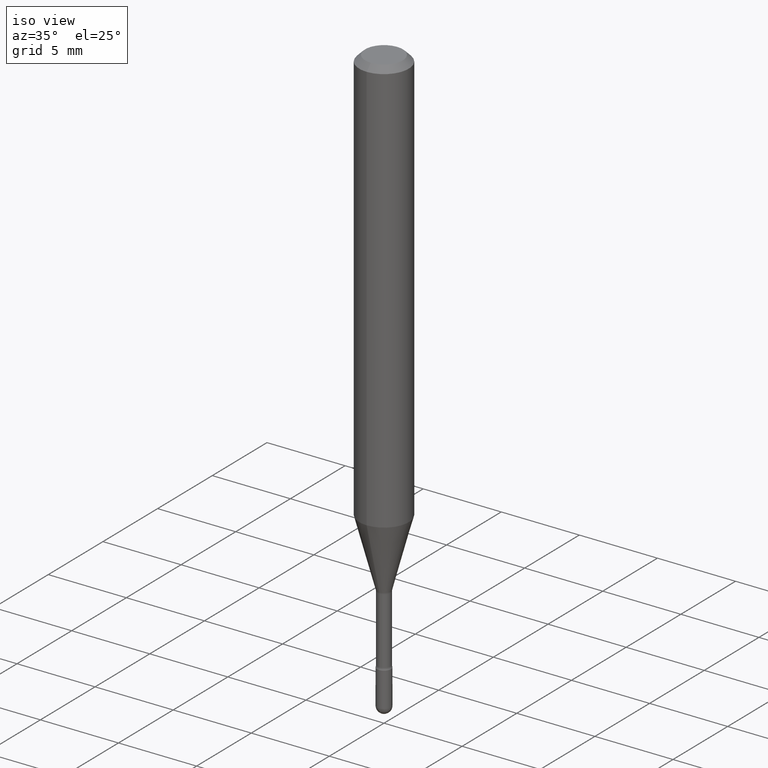
[diagram: clean part render]
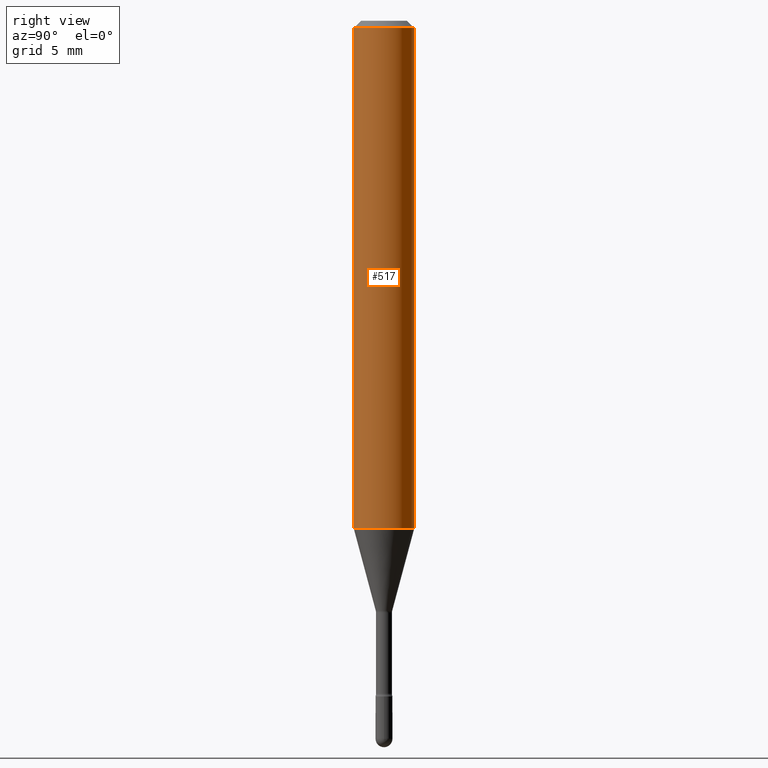
[diagram: tour spotlight — one face highlighted and labeled with its STEP entity id]
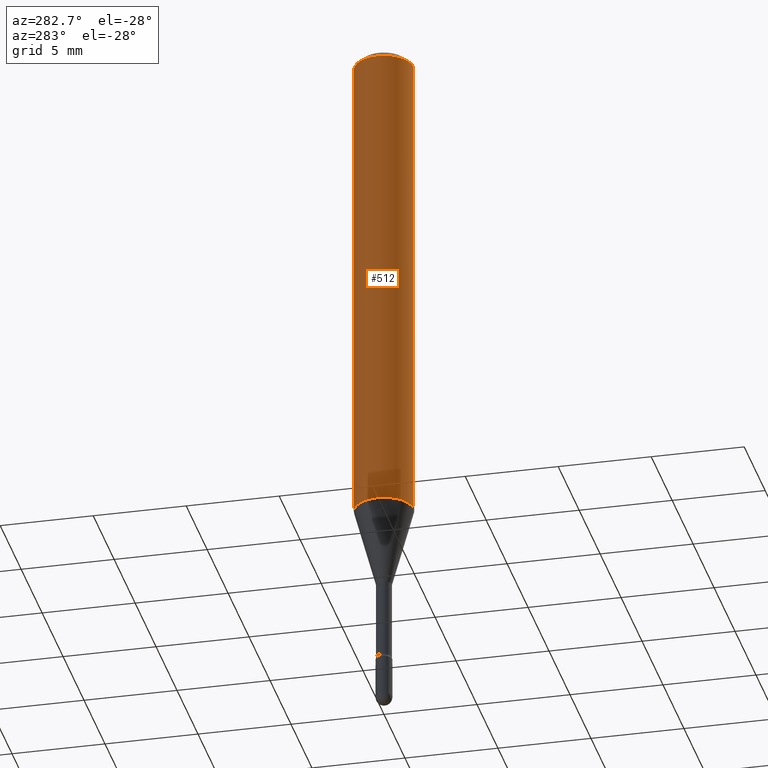
[diagram: tour spotlight — one face highlighted and labeled with its STEP entity id]
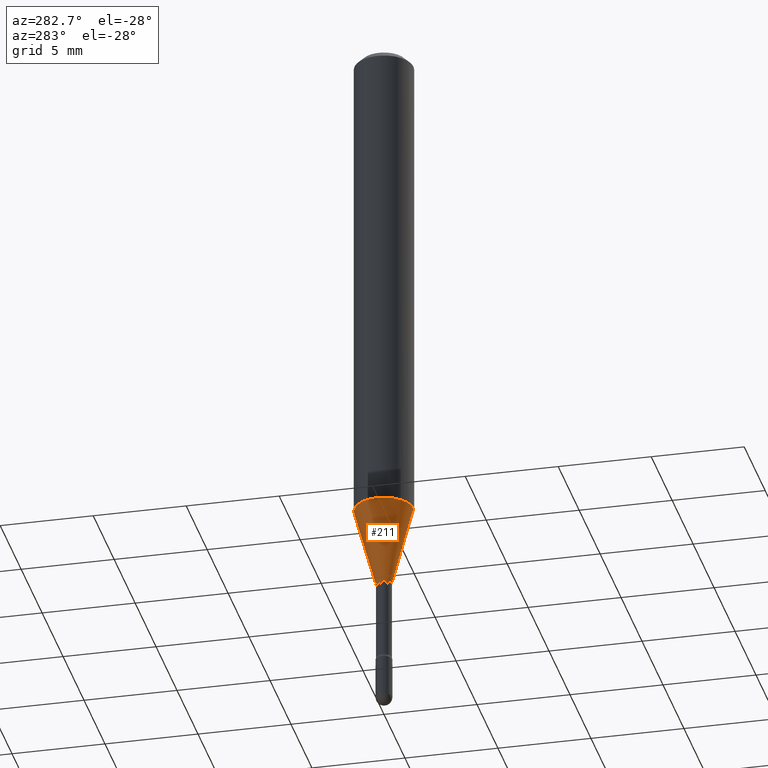
[diagram: tour spotlight — one face highlighted and labeled with its STEP entity id]
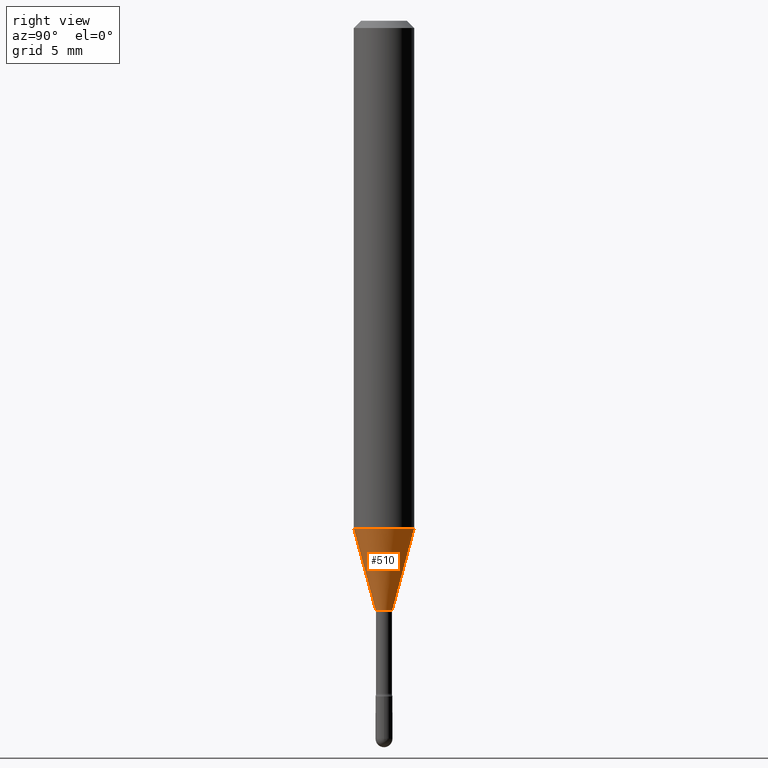
[diagram: tour spotlight — one face highlighted and labeled with its STEP entity id]
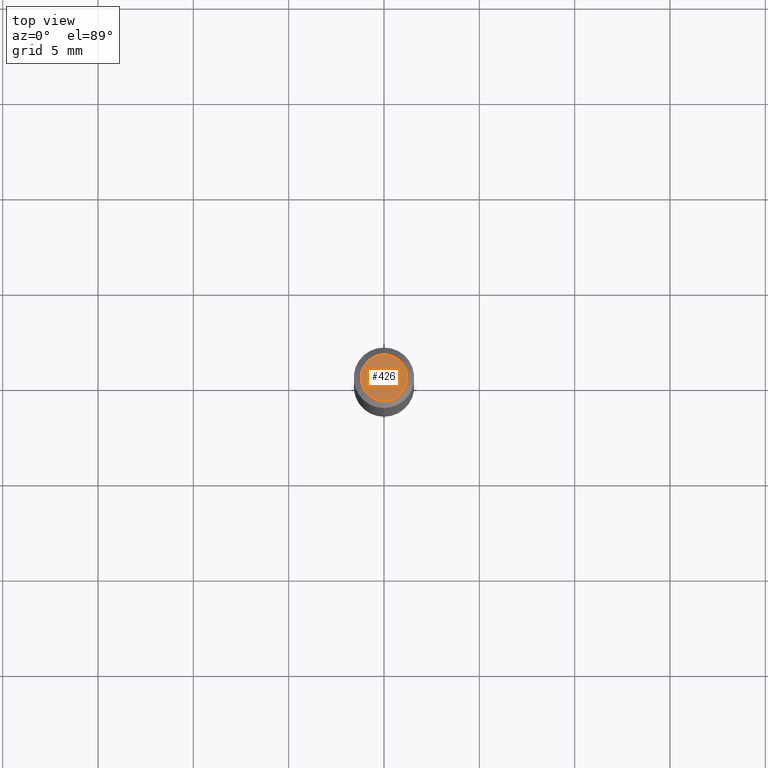
[diagram: tour spotlight — one face highlighted and labeled with its STEP entity id]
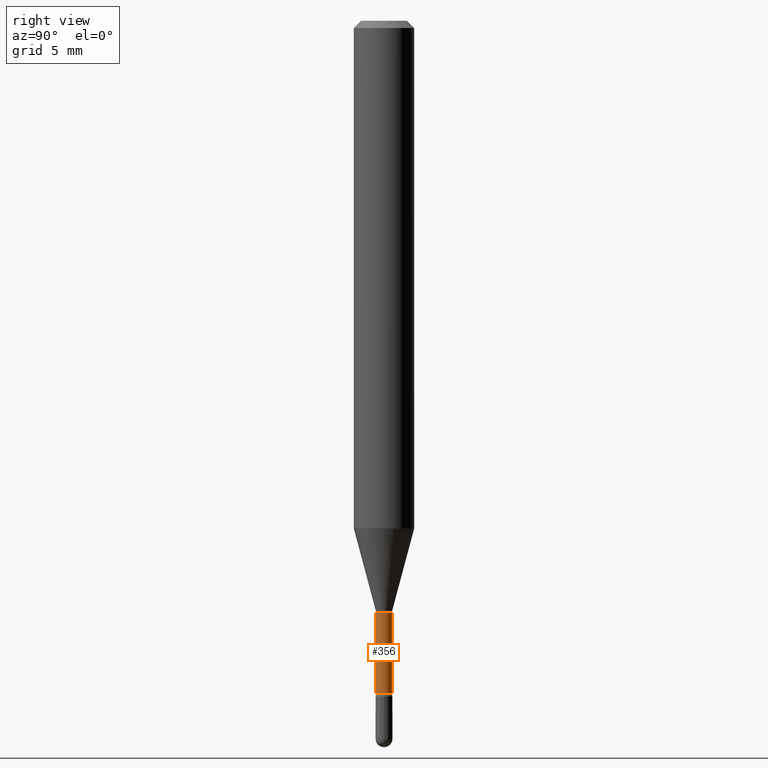
[diagram: tour spotlight — one face highlighted and labeled with its STEP entity id]
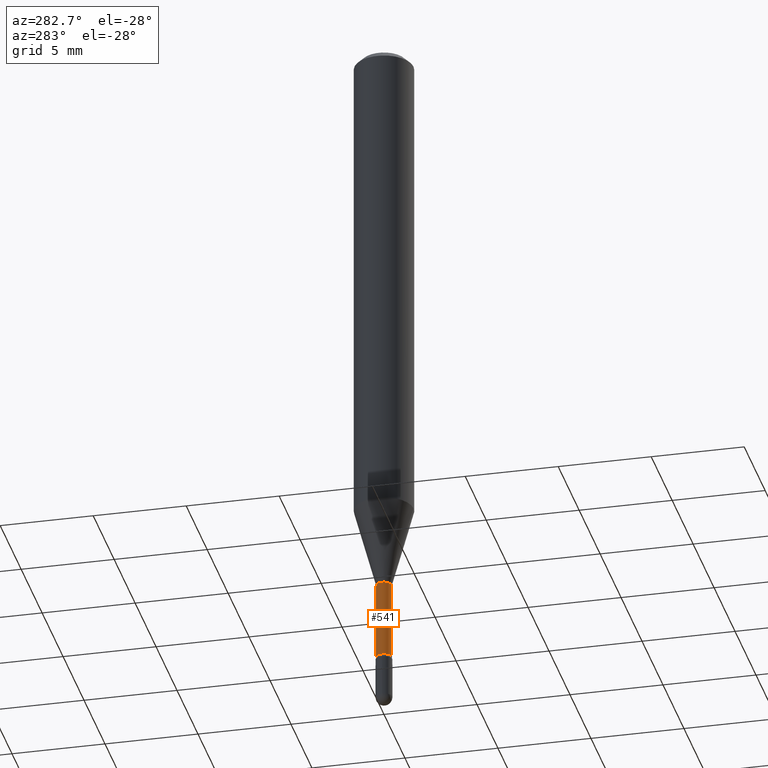
[diagram: tour spotlight — one face highlighted and labeled with its STEP entity id]
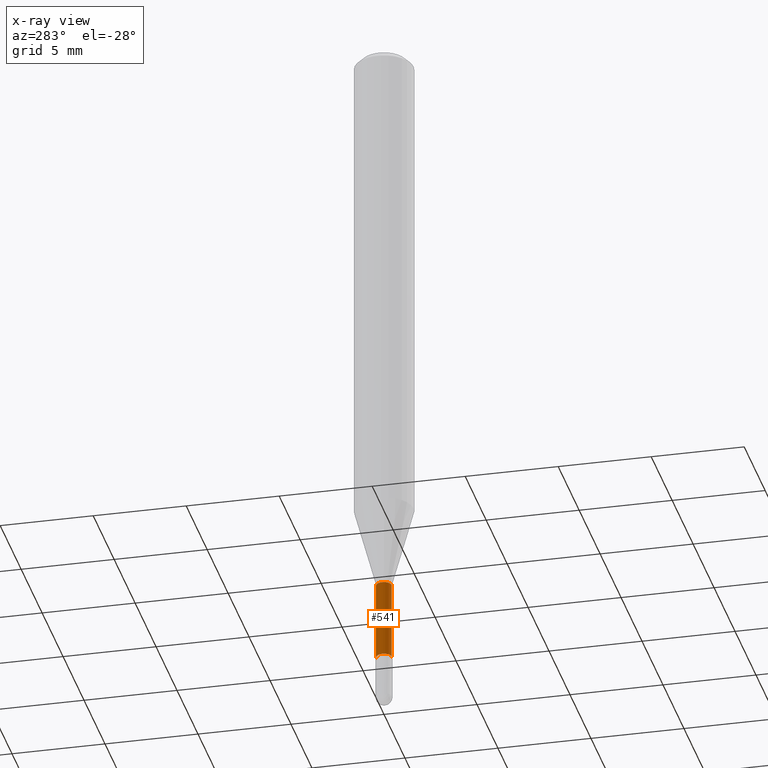
[diagram: x-ray of the same camera — body ghosted, this tour face saturated]
A machine part: a face-by-face anatomy tour. The part has 19 B-rep faces; the first image is the clean iso view, then the 7 largest visible faces are spotlighted one at a time (largest first), each with its STEP entity span.

Face 1 — right view, entity #517. In plain terms, the highlighted cylindrical surface (edge-blend (fillet) strip) has radius 1.5875 mm, axis along (-0, 0, 1).
Definition (entity closure, byte-faithful):
#6 = DIRECTION ( 'NONE',  ( -6.982962677686265922E-15, -1.000000000000000000, 3.491500473345853689E-15 ) ) ;
#11 = CARTESIAN_POINT ( 'NONE',  ( 2.563177371771484502E-29, -3.659578025209718433E-15, -1.048139060311453319 ) ) ;
#39 = LINE ( 'NONE', #515, #350 ) ;
#54 = EDGE_CURVE ( 'NONE', #156, #499, #299, .T. ) ;
#56 = FACE_OUTER_BOUND ( 'NONE', #346, .T. ) ;
#67 = ORIENTED_EDGE ( 'NONE', *, *, #308, .F. ) ;
#72 = CARTESIAN_POINT ( 'NONE',  ( 4.440892098500880569E-16, 0.06249999999999632933, -1.048139060311453763 ) ) ;
#89 = DIRECTION ( 'NONE',  ( -2.445455444633309637E-29, 3.491500473345854084E-15, 1.000000000000000000 ) ) ;
#138 = CARTESIAN_POINT ( 'NONE',  ( -1.169113584055446105E-44, 1.669184350826100908E-30, 4.780733988912460139E-16 ) ) ;
#155 = CARTESIAN_POINT ( 'NONE',  ( -4.364351673553912750E-16, -0.06250000000000005551, -0.01499999999999986587 ) ) ;
#156 = VERTEX_POINT ( 'NONE', #72 ) ;
#178 = CYLINDRICAL_SURFACE ( 'NONE', #262, 0.06250000000000000000 ) ;
#182 = VERTEX_POINT ( 'NONE', #155 ) ;
#185 = DIRECTION ( 'NONE',  ( -2.445455444633309637E-29, 3.491500473345854084E-15, 1.000000000000000000 ) ) ;
#187 = ORIENTED_EDGE ( 'NONE', *, *, #54, .T. ) ;
#188 = DIRECTION ( 'NONE',  ( -2.445455444633309637E-29, 3.491500473345854084E-15, 1.000000000000000000 ) ) ;
#249 = DIRECTION ( 'NONE',  ( -2.445455444633309637E-29, 3.491500473345854084E-15, 1.000000000000000000 ) ) ;
#262 = AXIS2_PLACEMENT_3D ( 'NONE', #138, #185, #6 ) ;
#273 = CIRCLE ( 'NONE', #309, 0.06250000000000000000 ) ;
#282 = AXIS2_PLACEMENT_3D ( 'NONE', #11, #188, #358 ) ;
#287 = EDGE_CURVE ( 'NONE', #306, #156, #522, .T. ) ;
#299 = LINE ( 'NONE', #507, #476 ) ;
#306 = VERTEX_POINT ( 'NONE', #319 ) ;
#308 = EDGE_CURVE ( 'NONE', #306, #182, #39, .T. ) ;
#309 = AXIS2_PLACEMENT_3D ( 'NONE', #345, #563, #427 ) ;
#319 = CARTESIAN_POINT ( 'NONE',  ( -4.364351673553661300E-16, -0.06250000000000367761, -1.048139060311453097 ) ) ;
#345 = CARTESIAN_POINT ( 'NONE',  ( 3.668183166949984529E-31, -5.237250710018810412E-17, -0.01500000000000008271 ) ) ;
#346 = EDGE_LOOP ( 'NONE', ( #403, #187, #417, #67 ) ) ;
#350 = VECTOR ( 'NONE', #89, 39.37007874015748143 ) ;
#358 = DIRECTION ( 'NONE',  ( -6.982962677686265922E-15, -1.000000000000000000, 4.370956789862821150E-15 ) ) ;
#403 = ORIENTED_EDGE ( 'NONE', *, *, #287, .T. ) ;
#417 = ORIENTED_EDGE ( 'NONE', *, *, #472, .F. ) ;
#427 = DIRECTION ( 'NONE',  ( -6.982962677686265922E-15, -1.000000000000000000, 3.483106191921935554E-15 ) ) ;
#472 = EDGE_CURVE ( 'NONE', #182, #499, #273, .T. ) ;
#476 = VECTOR ( 'NONE', #249, 39.37007874015748143 ) ;
#499 = VERTEX_POINT ( 'NONE', #511 ) ;
#507 = CARTESIAN_POINT ( 'NONE',  ( 4.440892098500625669E-16, 0.06250000000000000000, 2.598546193071301830E-16 ) ) ;
#511 = CARTESIAN_POINT ( 'NONE',  ( 4.440892098500883528E-16, 0.06249999999999993755, -0.01500000000000030129 ) ) ;
#515 = CARTESIAN_POINT ( 'NONE',  ( -4.364351673553916201E-16, -0.06250000000000000000, 6.962921784753619435E-16 ) ) ;
#517 = ADVANCED_FACE ( 'NONE', ( #56 ), #178, .T. ) ;
#522 = CIRCLE ( 'NONE', #282, 0.06250000000000000000 ) ;
#563 = DIRECTION ( 'NONE',  ( -2.445455444633309637E-29, 3.491500473345854084E-15, 1.000000000000000000 ) ) ;

Face 2 — auxiliary view, entity #512. In plain terms, the highlighted cylindrical surface (edge-blend (fillet) strip) has radius 1.5875 mm, axis along (-0, 0, 1).
Definition (entity closure, byte-faithful):
#35 = CARTESIAN_POINT ( 'NONE',  ( 3.668183166949984529E-31, -5.237250710018810412E-17, -0.01500000000000008271 ) ) ;
#39 = LINE ( 'NONE', #515, #350 ) ;
#46 = CYLINDRICAL_SURFACE ( 'NONE', #227, 0.06250000000000000000 ) ;
#54 = EDGE_CURVE ( 'NONE', #156, #499, #299, .T. ) ;
#68 = EDGE_CURVE ( 'NONE', #156, #306, #359, .T. ) ;
#70 = EDGE_CURVE ( 'NONE', #499, #182, #213, .T. ) ;
#72 = CARTESIAN_POINT ( 'NONE',  ( 4.440892098500880569E-16, 0.06249999999999632933, -1.048139060311453763 ) ) ;
#89 = DIRECTION ( 'NONE',  ( -2.445455444633309637E-29, 3.491500473345854084E-15, 1.000000000000000000 ) ) ;
#93 = AXIS2_PLACEMENT_3D ( 'NONE', #421, #215, #428 ) ;
#140 = DIRECTION ( 'NONE',  ( -6.982962677686265922E-15, -1.000000000000000000, 3.491500473345853689E-15 ) ) ;
#155 = CARTESIAN_POINT ( 'NONE',  ( -4.364351673553912750E-16, -0.06250000000000005551, -0.01499999999999986587 ) ) ;
#156 = VERTEX_POINT ( 'NONE', #72 ) ;
#182 = VERTEX_POINT ( 'NONE', #155 ) ;
#213 = CIRCLE ( 'NONE', #445, 0.06250000000000000000 ) ;
#215 = DIRECTION ( 'NONE',  ( -2.445455444633309637E-29, 3.491500473345854084E-15, 1.000000000000000000 ) ) ;
#220 = EDGE_LOOP ( 'NONE', ( #394, #231, #448, #478 ) ) ;
#225 = DIRECTION ( 'NONE',  ( -2.445455444633309637E-29, 3.491500473345854084E-15, 1.000000000000000000 ) ) ;
#227 = AXIS2_PLACEMENT_3D ( 'NONE', #442, #225, #140 ) ;
#231 = ORIENTED_EDGE ( 'NONE', *, *, #68, .T. ) ;
#249 = DIRECTION ( 'NONE',  ( -2.445455444633309637E-29, 3.491500473345854084E-15, 1.000000000000000000 ) ) ;
#299 = LINE ( 'NONE', #507, #476 ) ;
#306 = VERTEX_POINT ( 'NONE', #319 ) ;
#308 = EDGE_CURVE ( 'NONE', #306, #182, #39, .T. ) ;
#319 = CARTESIAN_POINT ( 'NONE',  ( -4.364351673553661300E-16, -0.06250000000000367761, -1.048139060311453097 ) ) ;
#344 = FACE_OUTER_BOUND ( 'NONE', #220, .T. ) ;
#350 = VECTOR ( 'NONE', #89, 39.37007874015748143 ) ;
#359 = CIRCLE ( 'NONE', #93, 0.06250000000000000000 ) ;
#378 = DIRECTION ( 'NONE',  ( -6.982962677686265922E-15, -1.000000000000000000, 3.483106191921935554E-15 ) ) ;
#394 = ORIENTED_EDGE ( 'NONE', *, *, #54, .F. ) ;
#421 = CARTESIAN_POINT ( 'NONE',  ( 2.563177371771484502E-29, -3.659578025209718433E-15, -1.048139060311453319 ) ) ;
#428 = DIRECTION ( 'NONE',  ( -6.982962677686265922E-15, -1.000000000000000000, 4.370956789862821150E-15 ) ) ;
#442 = CARTESIAN_POINT ( 'NONE',  ( -1.169113584055446105E-44, 1.669184350826100908E-30, 4.780733988912460139E-16 ) ) ;
#445 = AXIS2_PLACEMENT_3D ( 'NONE', #35, #465, #378 ) ;
#448 = ORIENTED_EDGE ( 'NONE', *, *, #308, .T. ) ;
#465 = DIRECTION ( 'NONE',  ( -2.445455444633309637E-29, 3.491500473345854084E-15, 1.000000000000000000 ) ) ;
#476 = VECTOR ( 'NONE', #249, 39.37007874015748143 ) ;
#478 = ORIENTED_EDGE ( 'NONE', *, *, #70, .F. ) ;
#499 = VERTEX_POINT ( 'NONE', #511 ) ;
#507 = CARTESIAN_POINT ( 'NONE',  ( 4.440892098500625669E-16, 0.06250000000000000000, 2.598546193071301830E-16 ) ) ;
#511 = CARTESIAN_POINT ( 'NONE',  ( 4.440892098500883528E-16, 0.06249999999999993755, -0.01500000000000030129 ) ) ;
#512 = ADVANCED_FACE ( 'NONE', ( #344 ), #46, .T. ) ;
#515 = CARTESIAN_POINT ( 'NONE',  ( -4.364351673553916201E-16, -0.06250000000000000000, 6.962921784753619435E-16 ) ) ;

Face 3 — auxiliary view, entity #211. In plain terms, the highlighted conical surface has half-angle 15 deg.
Definition (entity closure, byte-faithful):
#23 = DIRECTION ( 'NONE',  ( 1.839019923739595977E-15, 0.2588190451025243477, 0.9659258262890673130 ) ) ;
#31 = DIRECTION ( 'NONE',  ( -1.807323732225325801E-15, -0.2588190451025175753, 0.9659258262890690894 ) ) ;
#37 = CARTESIAN_POINT ( 'NONE',  ( 2.823025816868771357E-16, 0.01696111260565972764, -1.218092501787273241 ) ) ;
#38 = EDGE_CURVE ( 'NONE', #455, #156, #281, .T. ) ;
#52 = VECTOR ( 'NONE', #23, 39.37007874015748143 ) ;
#55 = EDGE_LOOP ( 'NONE', ( #384, #410, #176, #238 ) ) ;
#59 = CARTESIAN_POINT ( 'NONE',  ( 1.205159535236658201E-16, 0.01696111260565972417, -1.218092501787273241 ) ) ;
#65 = CARTESIAN_POINT ( 'NONE',  ( -1.184388162973558367E-16, -0.01696111260566823126, -1.218092501787273241 ) ) ;
#68 = EDGE_CURVE ( 'NONE', #156, #306, #359, .T. ) ;
#72 = CARTESIAN_POINT ( 'NONE',  ( 4.440892098500880569E-16, 0.06249999999999632933, -1.048139060311453763 ) ) ;
#75 = DIRECTION ( 'NONE',  ( -6.982962677686266711E-15, -1.000000000000000000, 0.000000000000000000 ) ) ;
#81 = CARTESIAN_POINT ( 'NONE',  ( -1.184388162973558367E-16, -0.01696111260566823126, -1.218092501787273241 ) ) ;
#93 = AXIS2_PLACEMENT_3D ( 'NONE', #421, #215, #428 ) ;
#109 = VECTOR ( 'NONE', #31, 39.37007874015748854 ) ;
#112 = DIRECTION ( 'NONE',  ( -2.445455444633309637E-29, 3.491500473345854084E-15, 1.000000000000000000 ) ) ;
#154 = AXIS2_PLACEMENT_3D ( 'NONE', #498, #112, #75 ) ;
#156 = VERTEX_POINT ( 'NONE', #72 ) ;
#160 = LINE ( 'NONE', #81, #109 ) ;
#176 = ORIENTED_EDGE ( 'NONE', *, *, #488, .T. ) ;
#211 = ADVANCED_FACE ( 'NONE', ( #537 ), #466, .T. ) ;
#215 = DIRECTION ( 'NONE',  ( -2.445455444633309637E-29, 3.491500473345854084E-15, 1.000000000000000000 ) ) ;
#224 = VERTEX_POINT ( 'NONE', #65 ) ;
#232 = CARTESIAN_POINT ( 'NONE',  ( 2.978790940562696599E-29, -4.252970546569299993E-15, -1.218092501787273241 ) ) ;
#238 = ORIENTED_EDGE ( 'NONE', *, *, #68, .F. ) ;
#266 = DIRECTION ( 'NONE',  ( -2.445455444633309637E-29, 3.491500473345854084E-15, 1.000000000000000000 ) ) ;
#281 = LINE ( 'NONE', #59, #52 ) ;
#306 = VERTEX_POINT ( 'NONE', #319 ) ;
#319 = CARTESIAN_POINT ( 'NONE',  ( -4.364351673553661300E-16, -0.06250000000000367761, -1.048139060311453097 ) ) ;
#359 = CIRCLE ( 'NONE', #93, 0.06250000000000000000 ) ;
#384 = ORIENTED_EDGE ( 'NONE', *, *, #38, .F. ) ;
#410 = ORIENTED_EDGE ( 'NONE', *, *, #553, .T. ) ;
#421 = CARTESIAN_POINT ( 'NONE',  ( 2.563177371771484502E-29, -3.659578025209718433E-15, -1.048139060311453319 ) ) ;
#428 = DIRECTION ( 'NONE',  ( -6.982962677686265922E-15, -1.000000000000000000, 4.370956789862821150E-15 ) ) ;
#444 = DIRECTION ( 'NONE',  ( -6.982962677686266711E-15, -1.000000000000000000, 0.000000000000000000 ) ) ;
#446 = CIRCLE ( 'NONE', #514, 0.01696111260566397771 ) ;
#455 = VERTEX_POINT ( 'NONE', #37 ) ;
#466 = CONICAL_SURFACE ( 'NONE', #154, 0.01696111260566397771, 0.2617993877991496299 ) ;
#488 = EDGE_CURVE ( 'NONE', #224, #306, #160, .T. ) ;
#498 = CARTESIAN_POINT ( 'NONE',  ( 2.978790940562696599E-29, -4.252970546569299993E-15, -1.218092501787273241 ) ) ;
#514 = AXIS2_PLACEMENT_3D ( 'NONE', #232, #266, #444 ) ;
#537 = FACE_OUTER_BOUND ( 'NONE', #55, .T. ) ;
#553 = EDGE_CURVE ( 'NONE', #455, #224, #446, .T. ) ;

Face 4 — right view, entity #510. In plain terms, the highlighted conical surface has half-angle 15 deg.
Definition (entity closure, byte-faithful):
#11 = CARTESIAN_POINT ( 'NONE',  ( 2.563177371771484502E-29, -3.659578025209718433E-15, -1.048139060311453319 ) ) ;
#21 = ORIENTED_EDGE ( 'NONE', *, *, #38, .T. ) ;
#23 = DIRECTION ( 'NONE',  ( 1.839019923739595977E-15, 0.2588190451025243477, 0.9659258262890673130 ) ) ;
#31 = DIRECTION ( 'NONE',  ( -1.807323732225325801E-15, -0.2588190451025175753, 0.9659258262890690894 ) ) ;
#37 = CARTESIAN_POINT ( 'NONE',  ( 2.823025816868771357E-16, 0.01696111260565972764, -1.218092501787273241 ) ) ;
#38 = EDGE_CURVE ( 'NONE', #455, #156, #281, .T. ) ;
#52 = VECTOR ( 'NONE', #23, 39.37007874015748143 ) ;
#59 = CARTESIAN_POINT ( 'NONE',  ( 1.205159535236658201E-16, 0.01696111260565972417, -1.218092501787273241 ) ) ;
#65 = CARTESIAN_POINT ( 'NONE',  ( -1.184388162973558367E-16, -0.01696111260566823126, -1.218092501787273241 ) ) ;
#72 = CARTESIAN_POINT ( 'NONE',  ( 4.440892098500880569E-16, 0.06249999999999632933, -1.048139060311453763 ) ) ;
#81 = CARTESIAN_POINT ( 'NONE',  ( -1.184388162973558367E-16, -0.01696111260566823126, -1.218092501787273241 ) ) ;
#98 = CIRCLE ( 'NONE', #191, 0.01696111260566397771 ) ;
#109 = VECTOR ( 'NONE', #31, 39.37007874015748854 ) ;
#122 = DIRECTION ( 'NONE',  ( -2.445455444633309637E-29, 3.491500473345854084E-15, 1.000000000000000000 ) ) ;
#156 = VERTEX_POINT ( 'NONE', #72 ) ;
#160 = LINE ( 'NONE', #81, #109 ) ;
#169 = EDGE_CURVE ( 'NONE', #224, #455, #98, .T. ) ;
#188 = DIRECTION ( 'NONE',  ( -2.445455444633309637E-29, 3.491500473345854084E-15, 1.000000000000000000 ) ) ;
#191 = AXIS2_PLACEMENT_3D ( 'NONE', #416, #450, #487 ) ;
#209 = FACE_OUTER_BOUND ( 'NONE', #526, .T. ) ;
#224 = VERTEX_POINT ( 'NONE', #65 ) ;
#268 = CONICAL_SURFACE ( 'NONE', #303, 0.01696111260566397771, 0.2617993877991496299 ) ;
#281 = LINE ( 'NONE', #59, #52 ) ;
#282 = AXIS2_PLACEMENT_3D ( 'NONE', #11, #188, #358 ) ;
#286 = ORIENTED_EDGE ( 'NONE', *, *, #287, .F. ) ;
#287 = EDGE_CURVE ( 'NONE', #306, #156, #522, .T. ) ;
#303 = AXIS2_PLACEMENT_3D ( 'NONE', #506, #122, #304 ) ;
#304 = DIRECTION ( 'NONE',  ( -6.982962677686266711E-15, -1.000000000000000000, 0.000000000000000000 ) ) ;
#306 = VERTEX_POINT ( 'NONE', #319 ) ;
#319 = CARTESIAN_POINT ( 'NONE',  ( -4.364351673553661300E-16, -0.06250000000000367761, -1.048139060311453097 ) ) ;
#331 = ORIENTED_EDGE ( 'NONE', *, *, #488, .F. ) ;
#354 = ORIENTED_EDGE ( 'NONE', *, *, #169, .T. ) ;
#358 = DIRECTION ( 'NONE',  ( -6.982962677686265922E-15, -1.000000000000000000, 4.370956789862821150E-15 ) ) ;
#416 = CARTESIAN_POINT ( 'NONE',  ( 2.978790940562696599E-29, -4.252970546569299993E-15, -1.218092501787273241 ) ) ;
#450 = DIRECTION ( 'NONE',  ( -2.445455444633309637E-29, 3.491500473345854084E-15, 1.000000000000000000 ) ) ;
#455 = VERTEX_POINT ( 'NONE', #37 ) ;
#487 = DIRECTION ( 'NONE',  ( -6.982962677686266711E-15, -1.000000000000000000, 0.000000000000000000 ) ) ;
#488 = EDGE_CURVE ( 'NONE', #224, #306, #160, .T. ) ;
#506 = CARTESIAN_POINT ( 'NONE',  ( 2.978790940562696599E-29, -4.252970546569299993E-15, -1.218092501787273241 ) ) ;
#510 = ADVANCED_FACE ( 'NONE', ( #209 ), #268, .T. ) ;
#522 = CIRCLE ( 'NONE', #282, 0.06250000000000000000 ) ;
#526 = EDGE_LOOP ( 'NONE', ( #354, #21, #286, #331 ) ) ;

Face 5 — top view, entity #426. In plain terms, the highlighted planar face has unit normal (0, -0, -1).
Definition (entity closure, byte-faithful):
#29 = CARTESIAN_POINT ( 'NONE',  ( 3.316907271900976096E-16, 0.04749999999999999362, 3.181736537036162079E-17 ) ) ;
#58 = EDGE_CURVE ( 'NONE', #497, #519, #454, .T. ) ;
#84 = CARTESIAN_POINT ( 'NONE',  ( 2.023455696568545272E-45, -2.889172759565612818E-31, -8.274612318266673942E-17 ) ) ;
#104 = EDGE_CURVE ( 'NONE', #519, #497, #307, .T. ) ;
#113 = CARTESIAN_POINT ( 'NONE',  ( 2.023455696568545272E-45, -2.889172759565612818E-31, -8.274612318266673942E-17 ) ) ;
#116 = DIRECTION ( 'NONE',  ( -6.982962677686266711E-15, -1.000000000000000000, 3.491500473345854478E-15 ) ) ;
#129 = AXIS2_PLACEMENT_3D ( 'NONE', #84, #292, #204 ) ;
#204 = DIRECTION ( 'NONE',  ( -6.982962677686266711E-15, -1.000000000000000000, 3.491500473345854478E-15 ) ) ;
#217 = PLANE ( 'NONE',  #317 ) ;
#260 = FACE_OUTER_BOUND ( 'NONE', #436, .T. ) ;
#292 = DIRECTION ( 'NONE',  ( -2.445455444633309637E-29, 3.491500473345854084E-15, 1.000000000000000000 ) ) ;
#307 = CIRCLE ( 'NONE', #338, 0.04749999999999999362 ) ;
#316 = ORIENTED_EDGE ( 'NONE', *, *, #104, .T. ) ;
#317 = AXIS2_PLACEMENT_3D ( 'NONE', #29, #554, #343 ) ;
#338 = AXIS2_PLACEMENT_3D ( 'NONE', #113, #555, #116 ) ;
#343 = DIRECTION ( 'NONE',  ( 6.982962677686265922E-15, 1.000000000000000000, -3.491500473345854084E-15 ) ) ;
#426 = ADVANCED_FACE ( 'NONE', ( #260 ), #217, .F. ) ;
#436 = EDGE_LOOP ( 'NONE', ( #316, #493 ) ) ;
#454 = CIRCLE ( 'NONE', #129, 0.04749999999999999362 ) ;
#493 = ORIENTED_EDGE ( 'NONE', *, *, #58, .T. ) ;
#497 = VERTEX_POINT ( 'NONE', #561 ) ;
#519 = VERTEX_POINT ( 'NONE', #520 ) ;
#520 = CARTESIAN_POINT ( 'NONE',  ( 3.840629472727447874E-16, 0.04749999999999999362, -2.485923956665947867E-16 ) ) ;
#554 = DIRECTION ( 'NONE',  ( 2.445455444633309356E-29, -3.491500473345854084E-15, -1.000000000000000000 ) ) ;
#555 = DIRECTION ( 'NONE',  ( -2.445455444633309637E-29, 3.491500473345854084E-15, 1.000000000000000000 ) ) ;
#561 = CARTESIAN_POINT ( 'NONE',  ( -3.773273898774340269E-16, -0.04749999999999999362, 8.310014930126133251E-17 ) ) ;

Face 6 — right view, entity #356. In plain terms, the highlighted cylindrical surface (edge-blend (fillet) strip) has radius 0.4178 mm, axis along (-0, 0, 1).
Definition (entity closure, byte-faithful):
#1 = ORIENTED_EDGE ( 'NONE', *, *, #41, .T. ) ;
#5 = VERTEX_POINT ( 'NONE', #275 ) ;
#41 = EDGE_CURVE ( 'NONE', #50, #443, #234, .T. ) ;
#45 = AXIS2_PLACEMENT_3D ( 'NONE', #134, #315, #48 ) ;
#48 = DIRECTION ( 'NONE',  ( -6.982962677686266711E-15, -1.000000000000000000, 0.000000000000000000 ) ) ;
#50 = VERTEX_POINT ( 'NONE', #289 ) ;
#62 = VERTEX_POINT ( 'NONE', #509 ) ;
#90 = ORIENTED_EDGE ( 'NONE', *, *, #536, .T. ) ;
#130 = AXIS2_PLACEMENT_3D ( 'NONE', #339, #379, #550 ) ;
#133 = ORIENTED_EDGE ( 'NONE', *, *, #453, .F. ) ;
#134 = CARTESIAN_POINT ( 'NONE',  ( 3.397927588859361801E-29, -4.851393146799434675E-15, -1.389486607215153491 ) ) ;
#162 = FACE_OUTER_BOUND ( 'NONE', #243, .T. ) ;
#172 = CARTESIAN_POINT ( 'NONE',  ( -1.169113584055446105E-44, 1.669184350826100908E-30, 4.780733988912460139E-16 ) ) ;
#189 = ORIENTED_EDGE ( 'NONE', *, *, #479, .F. ) ;
#234 = LINE ( 'NONE', #336, #373 ) ;
#243 = EDGE_LOOP ( 'NONE', ( #90, #1, #189, #133 ) ) ;
#251 = CARTESIAN_POINT ( 'NONE',  ( 1.168842800325705942E-16, 0.01644999999999573539, -1.221974787463810941 ) ) ;
#254 = DIRECTION ( 'NONE',  ( -6.982962677686266711E-15, -1.000000000000000000, 3.491500473345854873E-15 ) ) ;
#263 = DIRECTION ( 'NONE',  ( -2.445455444633309637E-29, 3.491500473345854084E-15, 1.000000000000000000 ) ) ;
#275 = CARTESIAN_POINT ( 'NONE',  ( -1.148697360479055251E-16, -0.01645000000000491208, -1.389486607215153491 ) ) ;
#289 = CARTESIAN_POINT ( 'NONE',  ( 1.206146293953111284E-16, 0.01644999999999521151, -1.389486607215153491 ) ) ;
#315 = DIRECTION ( 'NONE',  ( -2.445455444633309637E-29, 3.491500473345854084E-15, 1.000000000000000000 ) ) ;
#336 = CARTESIAN_POINT ( 'NONE',  ( 1.168842800325366731E-16, 0.01645000000000003057, 4.206382161047066551E-16 ) ) ;
#339 = CARTESIAN_POINT ( 'NONE',  ( 2.988284897208007501E-29, -4.266525548846594975E-15, -1.221974787463810941 ) ) ;
#356 = ADVANCED_FACE ( 'NONE', ( #162 ), #389, .T. ) ;
#373 = VECTOR ( 'NONE', #471, 39.37007874015748143 ) ;
#375 = VECTOR ( 'NONE', #434, 39.37007874015748143 ) ;
#379 = DIRECTION ( 'NONE',  ( -2.445455444633309637E-29, 3.491500473345854084E-15, 1.000000000000000000 ) ) ;
#381 = LINE ( 'NONE', #508, #375 ) ;
#389 = CYLINDRICAL_SURFACE ( 'NONE', #477, 0.01645000000000003057 ) ;
#393 = CIRCLE ( 'NONE', #45, 0.01645000000000006180 ) ;
#434 = DIRECTION ( 'NONE',  ( -2.445455444633309637E-29, 3.491500473345854084E-15, 1.000000000000000000 ) ) ;
#438 = CIRCLE ( 'NONE', #130, 0.01644999999999999934 ) ;
#443 = VERTEX_POINT ( 'NONE', #251 ) ;
#453 = EDGE_CURVE ( 'NONE', #5, #62, #381, .T. ) ;
#471 = DIRECTION ( 'NONE',  ( -2.445455444633309637E-29, 3.491500473345854084E-15, 1.000000000000000000 ) ) ;
#477 = AXIS2_PLACEMENT_3D ( 'NONE', #172, #263, #254 ) ;
#479 = EDGE_CURVE ( 'NONE', #62, #443, #438, .T. ) ;
#508 = CARTESIAN_POINT ( 'NONE',  ( -1.148697360479392982E-16, -0.01645000000000003057, 5.355085816777855206E-16 ) ) ;
#509 = CARTESIAN_POINT ( 'NONE',  ( -1.148697360479091982E-16, -0.01645000000000426676, -1.221974787463810941 ) ) ;
#536 = EDGE_CURVE ( 'NONE', #5, #50, #393, .T. ) ;
#550 = DIRECTION ( 'NONE',  ( -6.982962677686266711E-15, -1.000000000000000000, 0.000000000000000000 ) ) ;

Face 7 — auxiliary view, entity #541. An x-ray twin of the same camera follows (body ghosted, this face saturated) — the face is partly hidden behind the body. In plain terms, the highlighted cylindrical surface (edge-blend (fillet) strip) has radius 0.4178 mm, axis along (-0, 0, 1).
Definition (entity closure, byte-faithful):
#5 = VERTEX_POINT ( 'NONE', #275 ) ;
#41 = EDGE_CURVE ( 'NONE', #50, #443, #234, .T. ) ;
#50 = VERTEX_POINT ( 'NONE', #289 ) ;
#62 = VERTEX_POINT ( 'NONE', #509 ) ;
#91 = FACE_OUTER_BOUND ( 'NONE', #397, .T. ) ;
#126 = EDGE_CURVE ( 'NONE', #443, #62, #163, .T. ) ;
#161 = DIRECTION ( 'NONE',  ( -2.445455444633309637E-29, 3.491500473345854084E-15, 1.000000000000000000 ) ) ;
#163 = CIRCLE ( 'NONE', #564, 0.01644999999999999934 ) ;
#165 = DIRECTION ( 'NONE',  ( -6.982962677686266711E-15, -1.000000000000000000, 0.000000000000000000 ) ) ;
#179 = DIRECTION ( 'NONE',  ( -6.982962677686266711E-15, -1.000000000000000000, 0.000000000000000000 ) ) ;
#183 = DIRECTION ( 'NONE',  ( -2.445455444633309637E-29, 3.491500473345854084E-15, 1.000000000000000000 ) ) ;
#203 = CIRCLE ( 'NONE', #351, 0.01645000000000006180 ) ;
#208 = CARTESIAN_POINT ( 'NONE',  ( 2.988284897208007501E-29, -4.266525548846594975E-15, -1.221974787463810941 ) ) ;
#234 = LINE ( 'NONE', #336, #373 ) ;
#251 = CARTESIAN_POINT ( 'NONE',  ( 1.168842800325705942E-16, 0.01644999999999573539, -1.221974787463810941 ) ) ;
#252 = AXIS2_PLACEMENT_3D ( 'NONE', #398, #183, #353 ) ;
#270 = CARTESIAN_POINT ( 'NONE',  ( 3.397927588859361801E-29, -4.851393146799434675E-15, -1.389486607215153491 ) ) ;
#275 = CARTESIAN_POINT ( 'NONE',  ( -1.148697360479055251E-16, -0.01645000000000491208, -1.389486607215153491 ) ) ;
#289 = CARTESIAN_POINT ( 'NONE',  ( 1.206146293953111284E-16, 0.01644999999999521151, -1.389486607215153491 ) ) ;
#313 = ORIENTED_EDGE ( 'NONE', *, *, #453, .T. ) ;
#336 = CARTESIAN_POINT ( 'NONE',  ( 1.168842800325366731E-16, 0.01645000000000003057, 4.206382161047066551E-16 ) ) ;
#351 = AXIS2_PLACEMENT_3D ( 'NONE', #270, #481, #179 ) ;
#353 = DIRECTION ( 'NONE',  ( -6.982962677686266711E-15, -1.000000000000000000, 3.491500473345854873E-15 ) ) ;
#373 = VECTOR ( 'NONE', #471, 39.37007874015748143 ) ;
#375 = VECTOR ( 'NONE', #434, 39.37007874015748143 ) ;
#381 = LINE ( 'NONE', #508, #375 ) ;
#396 = CYLINDRICAL_SURFACE ( 'NONE', #252, 0.01645000000000003057 ) ;
#397 = EDGE_LOOP ( 'NONE', ( #401, #459, #313, #405 ) ) ;
#398 = CARTESIAN_POINT ( 'NONE',  ( -1.169113584055446105E-44, 1.669184350826100908E-30, 4.780733988912460139E-16 ) ) ;
#401 = ORIENTED_EDGE ( 'NONE', *, *, #41, .F. ) ;
#405 = ORIENTED_EDGE ( 'NONE', *, *, #126, .F. ) ;
#434 = DIRECTION ( 'NONE',  ( -2.445455444633309637E-29, 3.491500473345854084E-15, 1.000000000000000000 ) ) ;
#443 = VERTEX_POINT ( 'NONE', #251 ) ;
#453 = EDGE_CURVE ( 'NONE', #5, #62, #381, .T. ) ;
#459 = ORIENTED_EDGE ( 'NONE', *, *, #524, .T. ) ;
#471 = DIRECTION ( 'NONE',  ( -2.445455444633309637E-29, 3.491500473345854084E-15, 1.000000000000000000 ) ) ;
#481 = DIRECTION ( 'NONE',  ( -2.445455444633309637E-29, 3.491500473345854084E-15, 1.000000000000000000 ) ) ;
#508 = CARTESIAN_POINT ( 'NONE',  ( -1.148697360479392982E-16, -0.01645000000000003057, 5.355085816777855206E-16 ) ) ;
#509 = CARTESIAN_POINT ( 'NONE',  ( -1.148697360479091982E-16, -0.01645000000000426676, -1.221974787463810941 ) ) ;
#524 = EDGE_CURVE ( 'NONE', #50, #5, #203, .T. ) ;
#541 = ADVANCED_FACE ( 'NONE', ( #91 ), #396, .T. ) ;
#564 = AXIS2_PLACEMENT_3D ( 'NONE', #208, #161, #165 ) ;